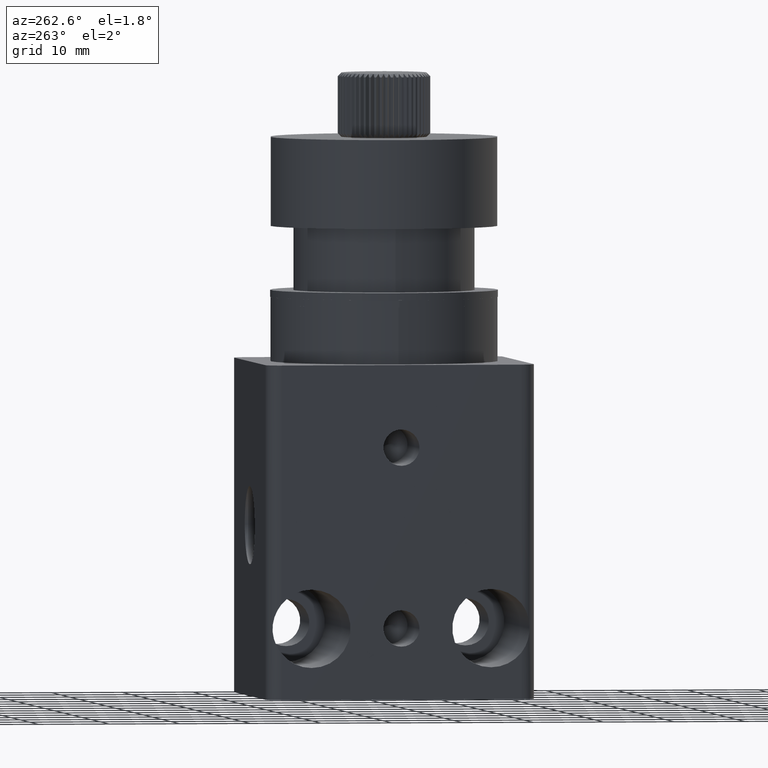
[diagram: clean part render]
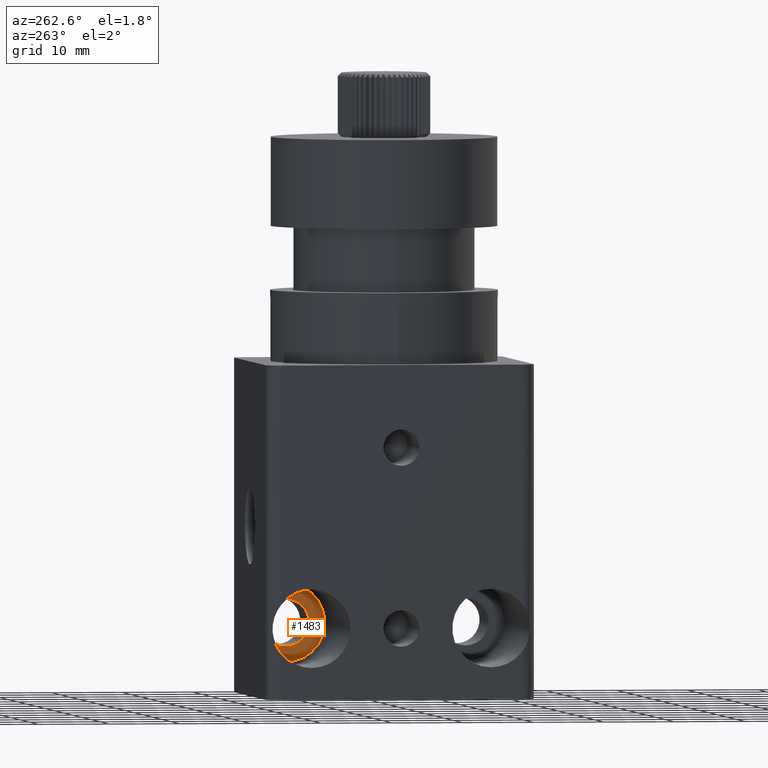
[diagram: same view with one face highlighted and labeled with its STEP entity id]
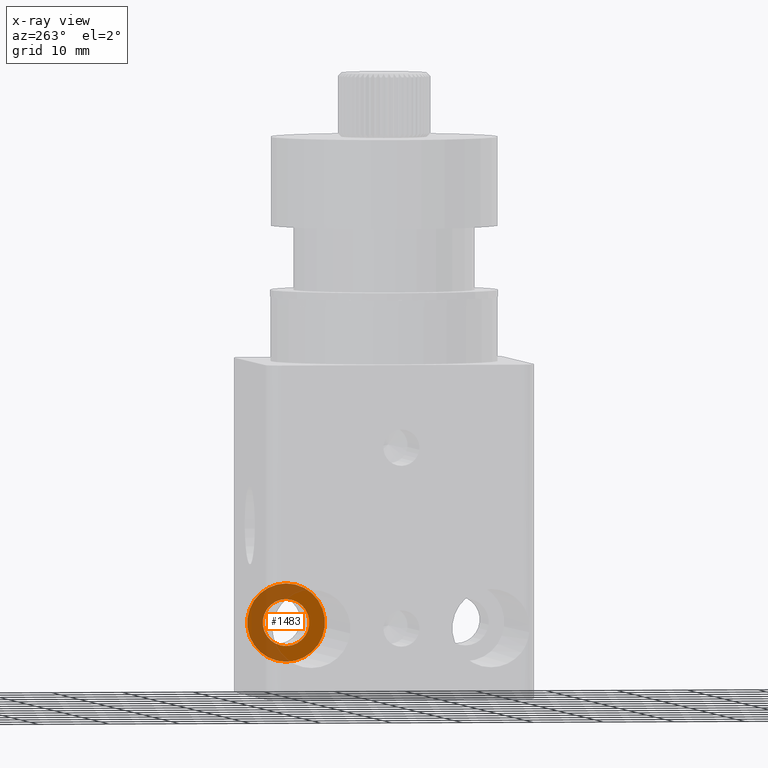
[diagram: x-ray of the same camera — body ghosted, the highlighted face saturated]
A machine part, auxiliary view. The second image highlights one B-rep face of the part: STEP entity #1483.
The next image is the same camera in x-ray: the body ghosted, the highlighted face saturated — about 50% of this face is hidden behind the body in this view.
In plain terms, the highlighted planar face has unit normal (1, 0, 0).
Its self-contained STEP definition (entity closure, byte-faithful):
#242 = CIRCLE ( 'NONE', #619, 5.499999999999994700 ) ;
#306 = VERTEX_POINT ( 'NONE', #5274 ) ;
#338 = PLANE ( 'NONE',  #7882 ) ;
#429 = ORIENTED_EDGE ( 'NONE', *, *, #6075, .T. ) ;
#435 = AXIS2_PLACEMENT_3D ( 'NONE', #5573, #536, #6214 ) ;
#499 = VERTEX_POINT ( 'NONE', #6036 ) ;
#536 = DIRECTION ( 'NONE',  ( -1.000000000000000000, -0.0000000000000000000, -0.0000000000000000000 ) ) ;
#619 = AXIS2_PLACEMENT_3D ( 'NONE', #7919, #4062, #6630 ) ;
#909 = DIRECTION ( 'NONE',  ( 1.000000000000000000, 0.0000000000000000000, 0.0000000000000000000 ) ) ;
#957 = CARTESIAN_POINT ( 'NONE',  ( 61.82532685223227300, 54.35691868999380500, 14.65325513704508100 ) ) ;
#993 = CARTESIAN_POINT ( 'NONE',  ( 61.82532685223227300, 54.35691868999380500, 5.853255137045096000 ) ) ;
#1079 = DIRECTION ( 'NONE',  ( -1.000000000000000000, -0.0000000000000000000, -0.0000000000000000000 ) ) ;
#1483 = ADVANCED_FACE ( 'NONE', ( #4843, #6247 ), #338, .F. ) ;
#1628 = CIRCLE ( 'NONE', #435, 3.299999999999990500 ) ;
#2064 = EDGE_CURVE ( 'NONE', #306, #5701, #242, .T. ) ;
#2185 = DIRECTION ( 'NONE',  ( 0.0000000000000000000, 0.0000000000000000000, -1.000000000000000000 ) ) ;
#2879 = ORIENTED_EDGE ( 'NONE', *, *, #3329, .F. ) ;
#2969 = ORIENTED_EDGE ( 'NONE', *, *, #2064, .T. ) ;
#3329 = EDGE_CURVE ( 'NONE', #3701, #499, #1628, .T. ) ;
#3382 = ORIENTED_EDGE ( 'NONE', *, *, #5065, .F. ) ;
#3701 = VERTEX_POINT ( 'NONE', #993 ) ;
#3786 = CARTESIAN_POINT ( 'NONE',  ( 61.82532685223227300, 54.35691868999380500, 9.153255137045086100 ) ) ;
#3810 = AXIS2_PLACEMENT_3D ( 'NONE', #3786, #5945, #4571 ) ;
#4056 = EDGE_LOOP ( 'NONE', ( #429, #2969 ) ) ;
#4062 = DIRECTION ( 'NONE',  ( -1.000000000000000000, -0.0000000000000000000, -0.0000000000000000000 ) ) ;
#4540 = EDGE_LOOP ( 'NONE', ( #3382, #2879 ) ) ;
#4571 = DIRECTION ( 'NONE',  ( 0.0000000000000000000, 0.0000000000000000000, 1.000000000000000000 ) ) ;
#4664 = CIRCLE ( 'NONE', #3810, 3.299999999999990500 ) ;
#4818 = CARTESIAN_POINT ( 'NONE',  ( 61.82532685223227300, 57.65691868999380200, 9.153255137045086100 ) ) ;
#4843 = FACE_BOUND ( 'NONE', #4540, .T. ) ;
#4960 = DIRECTION ( 'NONE',  ( 0.0000000000000000000, 0.0000000000000000000, 1.000000000000000000 ) ) ;
#5045 = AXIS2_PLACEMENT_3D ( 'NONE', #5389, #1079, #4960 ) ;
#5065 = EDGE_CURVE ( 'NONE', #499, #3701, #4664, .T. ) ;
#5274 = CARTESIAN_POINT ( 'NONE',  ( 61.82532685223227300, 54.35691868999380500, 3.653255137045091400 ) ) ;
#5389 = CARTESIAN_POINT ( 'NONE',  ( 61.82532685223227300, 54.35691868999380500, 9.153255137045086100 ) ) ;
#5573 = CARTESIAN_POINT ( 'NONE',  ( 61.82532685223227300, 54.35691868999380500, 9.153255137045086100 ) ) ;
#5701 = VERTEX_POINT ( 'NONE', #957 ) ;
#5945 = DIRECTION ( 'NONE',  ( -1.000000000000000000, -0.0000000000000000000, -0.0000000000000000000 ) ) ;
#6036 = CARTESIAN_POINT ( 'NONE',  ( 61.82532685223227300, 54.35691868999380500, 12.45325513704507600 ) ) ;
#6075 = EDGE_CURVE ( 'NONE', #5701, #306, #7057, .T. ) ;
#6214 = DIRECTION ( 'NONE',  ( 0.0000000000000000000, 0.0000000000000000000, 1.000000000000000000 ) ) ;
#6247 = FACE_OUTER_BOUND ( 'NONE', #4056, .T. ) ;
#6630 = DIRECTION ( 'NONE',  ( 0.0000000000000000000, 0.0000000000000000000, 1.000000000000000000 ) ) ;
#7057 = CIRCLE ( 'NONE', #5045, 5.499999999999994700 ) ;
#7882 = AXIS2_PLACEMENT_3D ( 'NONE', #4818, #909, #2185 ) ;
#7919 = CARTESIAN_POINT ( 'NONE',  ( 61.82532685223227300, 54.35691868999380500, 9.153255137045086100 ) ) ;